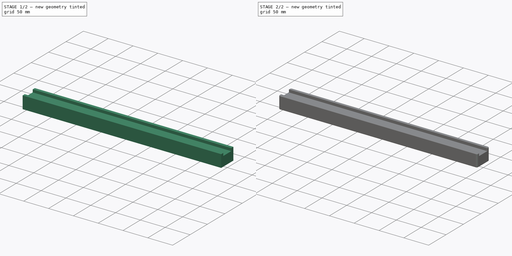
[diagram: build sequence overview — one tinted view per stage of 2, left to right]
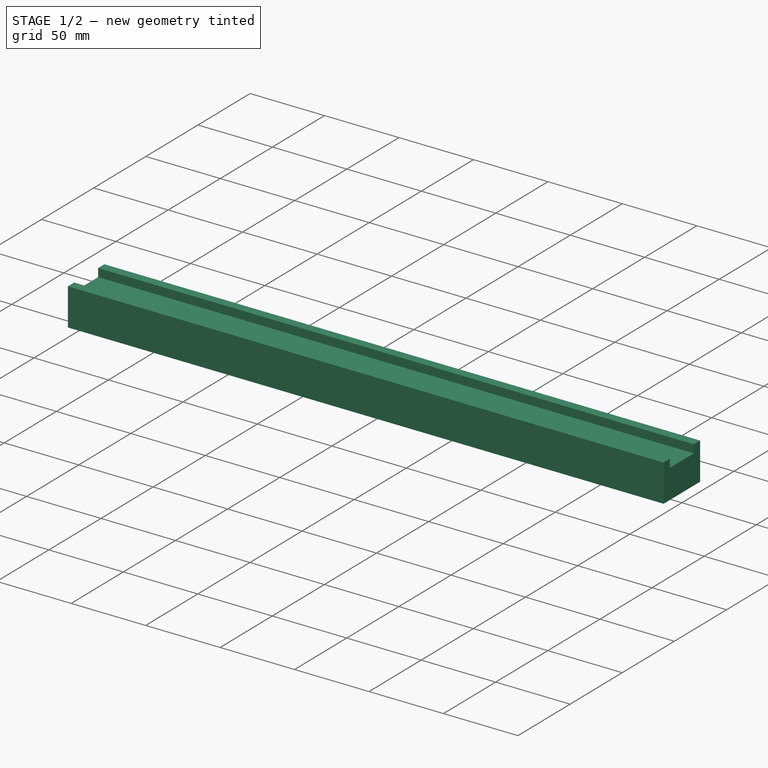
[diagram: stage 1 of 2 — iso view after this stage's code; geometry added in this stage tinted green]
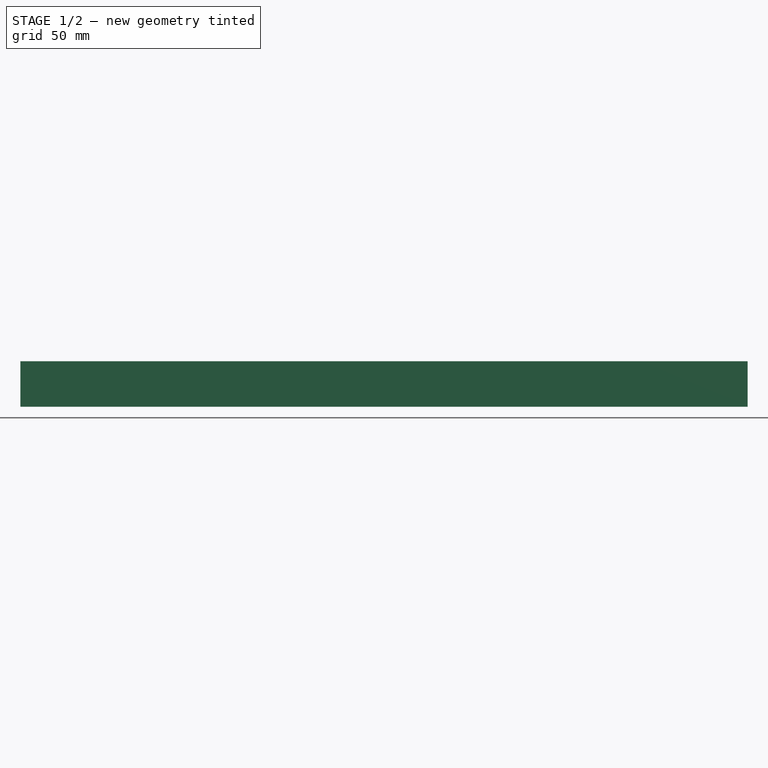
[diagram: stage 1 of 2 — front view after this stage's code; geometry added in this stage tinted green]
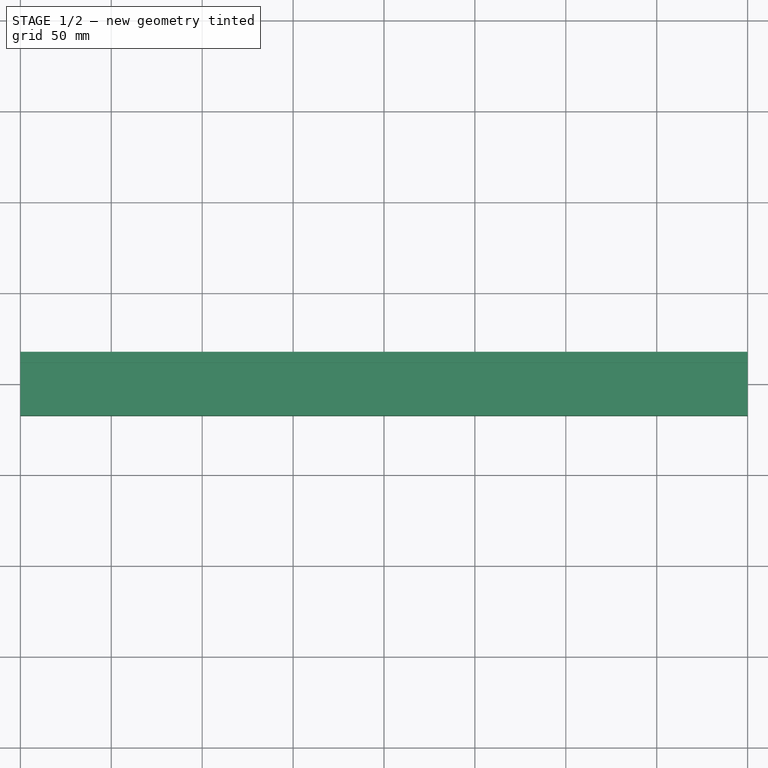
[diagram: stage 1 of 2 — top view after this stage's code; geometry added in this stage tinted green]
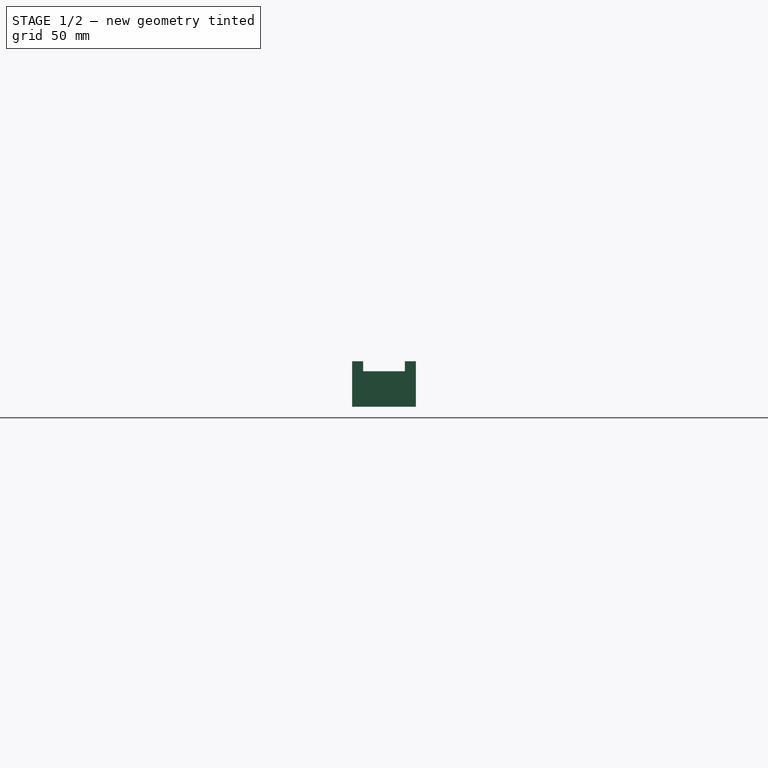
[diagram: stage 1 of 2 — right view after this stage's code; geometry added in this stage tinted green]
FCSTD DOCUMENT  (FreeCAD 0.20R30918 (Git))
Label: ПроставкаY
License: All rights reserved
objects: Sketcher::SketchObject×2, PartDesign::Fillet×2, PartDesign::Pad×1, PartDesign::Pocket×1, PartDesign::Body×1
note: 15 computed .brp shape members not serialized (recipe doc carries the construction recipe); baked Part::Feature solids carry a one-line shape summary decoded from their .brp
EXTERNAL_REF file=ТаблицаПараметров.FCStd obj=Spreadsheet001
EXTERNAL_REF file=ТаблицаПараметров.FCStd obj=Spreadsheet005

FEATURE [Sketcher::SketchObject] Sketch  label="ТелоПроставки"
  FullyConstrained = true
  MapMode = 5
  Support = -> [XY_Plane]
  TreeRank = 0
  expr: Constraints[8] = <<ТаблицаПараметров>>#<<ПроставкаYТабл>>.Shirina
  expr: Constraints[9] = ТаблицаПараметров#<<ТаблСтанина>>.GlubinaStaninu
  sketch-geometry (4):
    g0: LineSegment StartX=-200 StartY=17.5 StartZ=0 EndX=200 EndY=17.5 EndZ=0
    g1: LineSegment StartX=200 StartY=17.5 StartZ=0 EndX=200 EndY=-17.5 EndZ=0
    g2: LineSegment StartX=200 StartY=-17.5 StartZ=0 EndX=-200 EndY=-17.5 EndZ=0
    g3: LineSegment StartX=-200 StartY=-17.5 StartZ=0 EndX=-200 EndY=17.5 EndZ=0
  constraints (11):
    c: Coincident(g0,g1)
    c: Coincident(g1,g2)
    c: Coincident(g2,g3)
    c: Coincident(g3,g0)
    c: Horizontal(g0)
    c: Horizontal(g2)
    c: Vertical(g1)
    c: Vertical(g3)
    c: DistanceY(g3,g3) = 35
    c: DistanceX(g0,g0) = 400
    c: Symmetric(g0,g1,g-1)
FEATURE [PartDesign::Pad] Pad  label="ПроставкаТело"
  AddSubType = 0
  AlongSketchNormal = false
  CheckUpToFaceLimits = true
  ClaimChildren = false
  Direction = (0,0,1)
  Fit = 0
  FitJoin = 0
  InnerFit = 0
  InnerFitJoin = 0
  InnerTaperAngle = 0
  InnerTaperAngleRev = 0
  Length = 25
  Length2 = 100
  NewSolid = false
  Profile = -> Sketch
  Reversed = true
  Suppress = false
  TreeRank = 0
  Type = 0
  UsePipeForDraft = true
  _ProfileBasedVersion = 0
  expr: Length = ТаблицаПараметров#<<ПроставкаYТабл>>.Tolshina
FEATURE [Sketcher::SketchObject] Sketch001  label="ПазПодРельсу"
  FullyConstrained = true
  MapMode = 5
  Placement = pos=(200,0,0) rot=(0.57735,0.57735,0.57735;2.0944rad)
  Support = -> [Pad]
  TreeRank = 0
  expr: Constraints[10] = <<ТаблицаПараметров>>#<<ПроставкаYТабл>>.GlubunaPaza
  expr: Constraints[9] = ТаблицаПараметров#<<ПроставкаYТабл>>.ShirinaPaza
  sketch-geometry (4):
    g0: LineSegment StartX=-11.5 StartY=0 StartZ=0 EndX=11.5 EndY=0 EndZ=0
    g1: LineSegment StartX=11.5 StartY=0 StartZ=0 EndX=11.5 EndY=-5.5 EndZ=0
    g2: LineSegment StartX=11.5 StartY=-5.5 StartZ=0 EndX=-11.5 EndY=-5.5 EndZ=0
    g3: LineSegment StartX=-11.5 StartY=-5.5 StartZ=0 EndX=-11.5 EndY=0 EndZ=0
  constraints (11):
    c: Coincident(g0,g1)
    c: Coincident(g1,g2)
    c: Coincident(g2,g3)
    c: Coincident(g3,g0)
    c: Horizontal(g0)
    c: Horizontal(g2)
    c: Vertical(g1)
    c: Vertical(g3)
    c: Symmetric(g0,g0,g-1)
    c: DistanceX(g2,g2) = 23
    c: DistanceY(g1,g1) = 5.5
FEATURE [PartDesign::Pocket] Pocket  label="ПазРельсы"
  AddSubType = 1
  BaseFeature = -> Pad
  CheckUpToFaceLimits = true
  ClaimChildren = false
  Configuration = -1
  Fit = 0
  FitJoin = 0
  InnerFit = 0
  InnerFitJoin = 0
  InnerTaperAngle = 0
  InnerTaperAngleRev = 0
  Length = 400
  Length2 = 100
  NewSolid = false
  Profile = -> Sketch001
  Suppress = false
  TreeRank = 0
  Type = 0
  UsePipeForDraft = true
  _ProfileBasedVersion = 0
  _Version = 0
  expr: Length = <<ТаблицаПараметров>>#<<ТаблСтанина>>.GlubinaStaninu
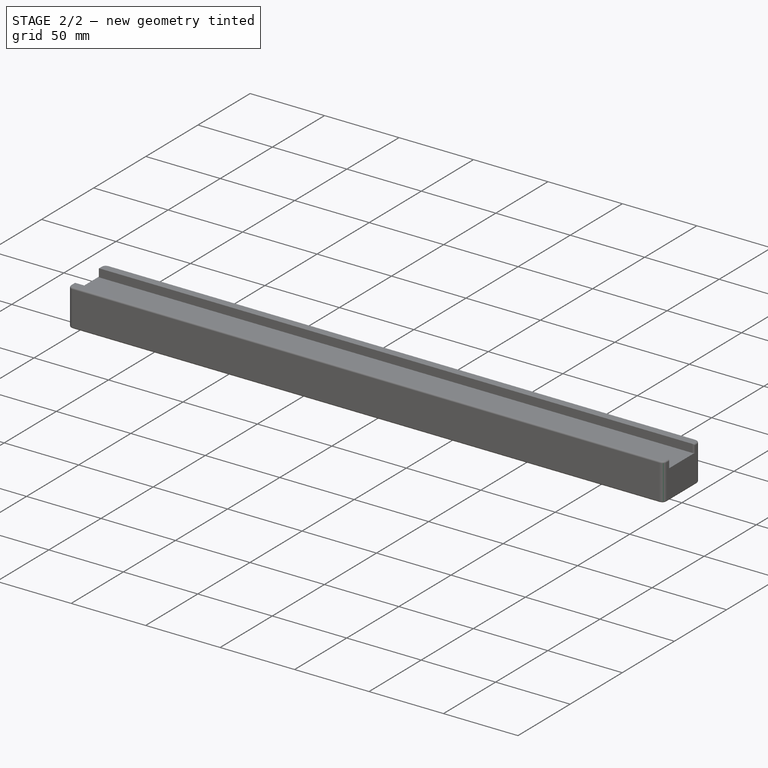
[diagram: stage 2 of 2 — iso view after this stage's code; geometry added in this stage tinted green]
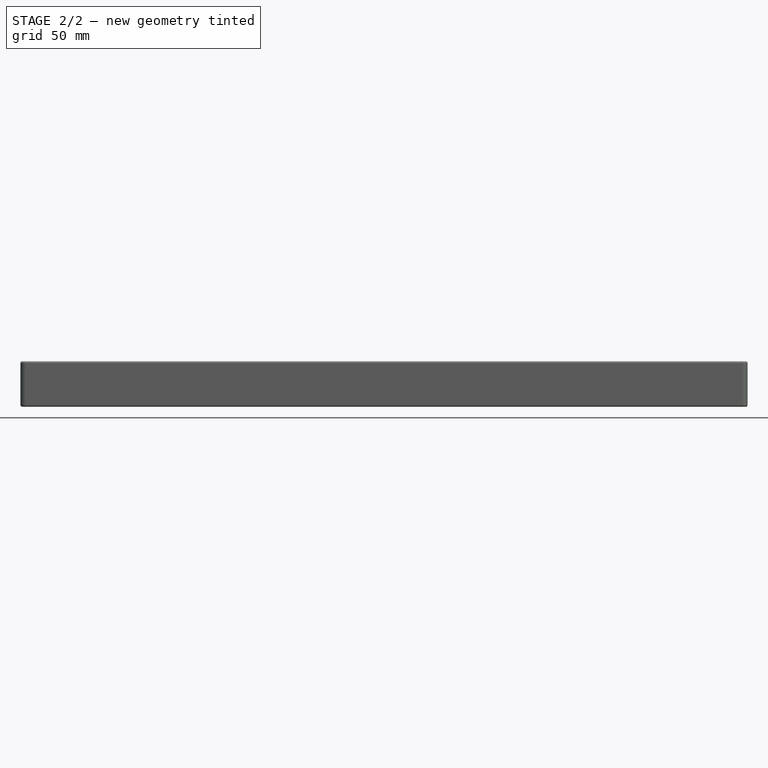
[diagram: stage 2 of 2 — front view after this stage's code; geometry added in this stage tinted green]
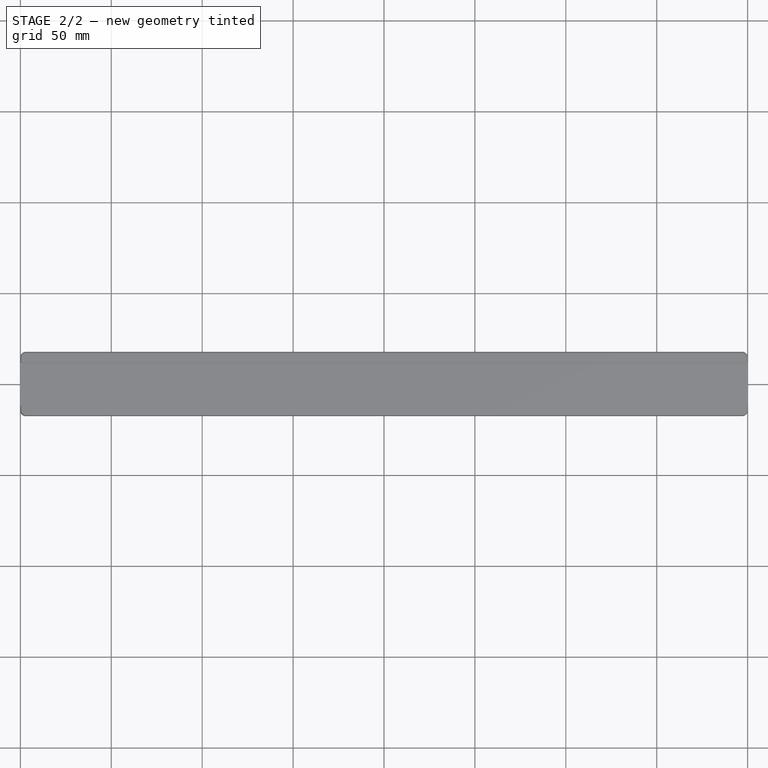
[diagram: stage 2 of 2 — top view after this stage's code; geometry added in this stage tinted green]
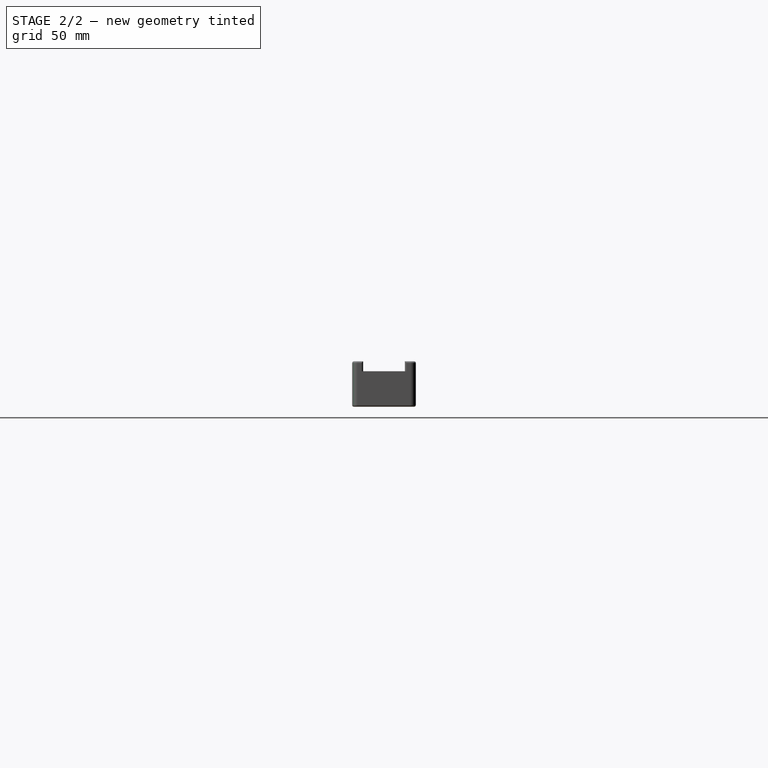
[diagram: stage 2 of 2 — right view after this stage's code; geometry added in this stage tinted green]
FEATURE [PartDesign::Fillet] Fillet  label="Фаска3мм"
  AddSubType = 0
  Base = -> Pocket [Edge17,Edge1,Edge11]
  BaseFeature = -> Pocket
  NewSolid = false
  Radius = 3
  SupportTransform = false
  Suppress = false
  TreeRank = 0
FEATURE [PartDesign::Fillet] Fillet001  label="Фаска1мм"
  AddSubType = 0
  Base = -> Fillet [Edge13,?Edge8,Edge23,Edge17,Edge25,Edge21,Edge16]
  BaseFeature = -> Fillet
  NewSolid = false
  Radius = 1
  SupportTransform = false
  Suppress = false
  TreeRank = 0
FEATURE [PartDesign::Body] Body  label="ПРОСТАВКА"
  AutoGroupSolids = false
  ExportMode = 0
  Group = -> [Sketch,Pad,Sketch001,Pocket,Fillet,Fillet001]
  Origin = -> Origin
  Tip = -> Fillet001
  TreeRank = 0
  _ExportChildren = -> [Pad,Pocket,Fillet,Fillet001]
  _GroupVersion = 1
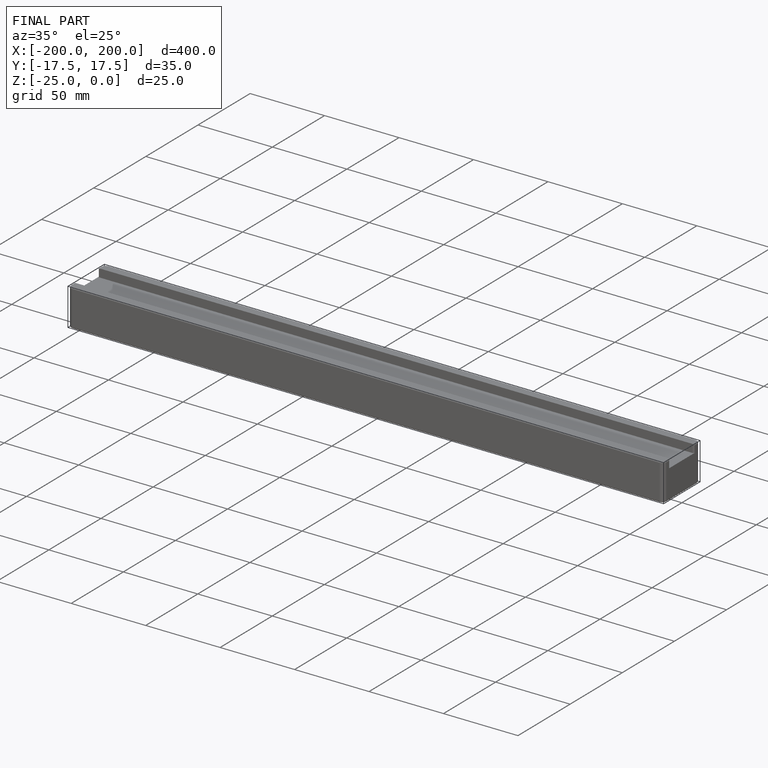
[diagram: finished part — iso view with bounding-box wireframe]
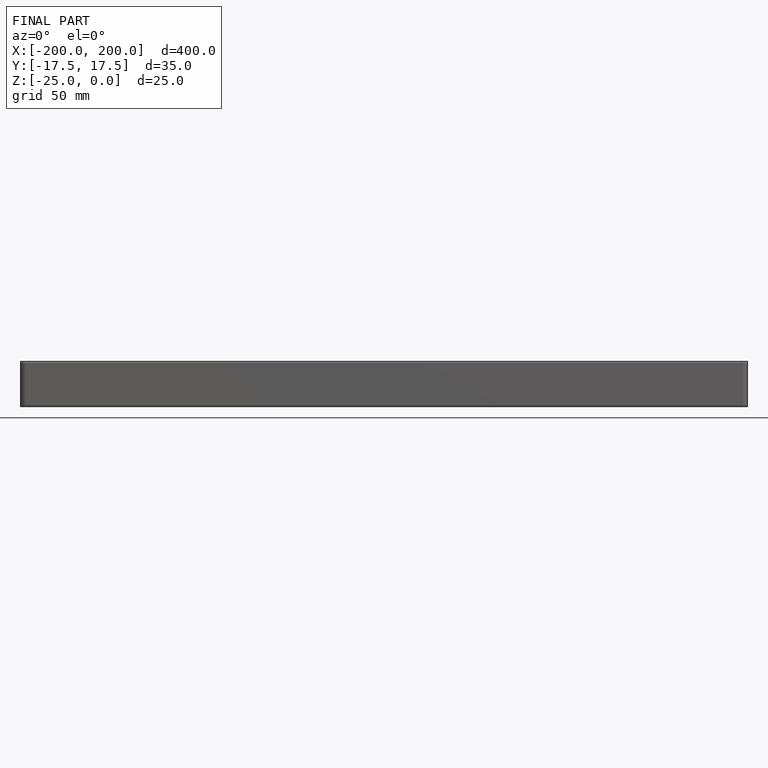
[diagram: finished part — front view with bounding-box wireframe]
